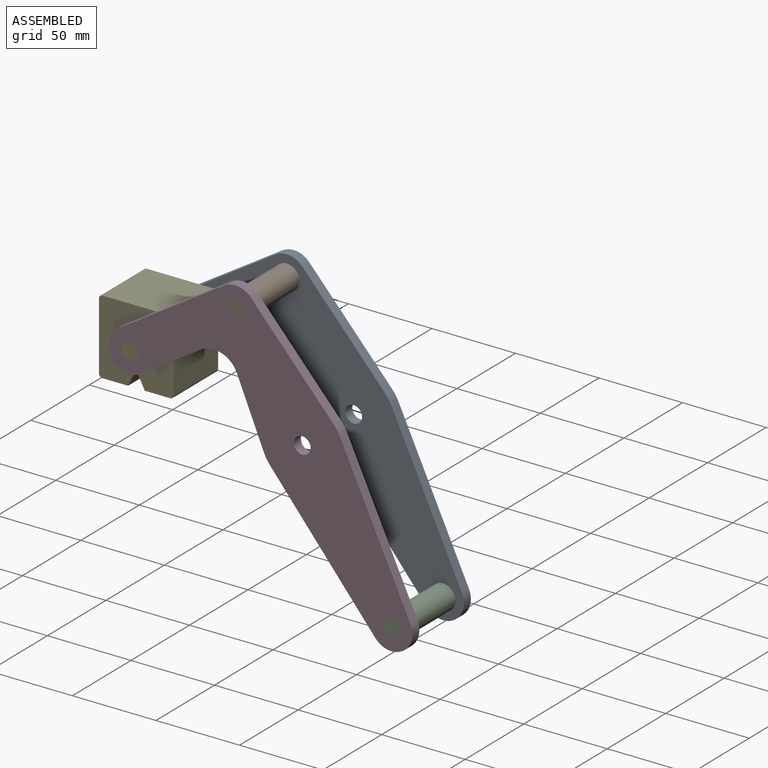
[diagram: assembled view]
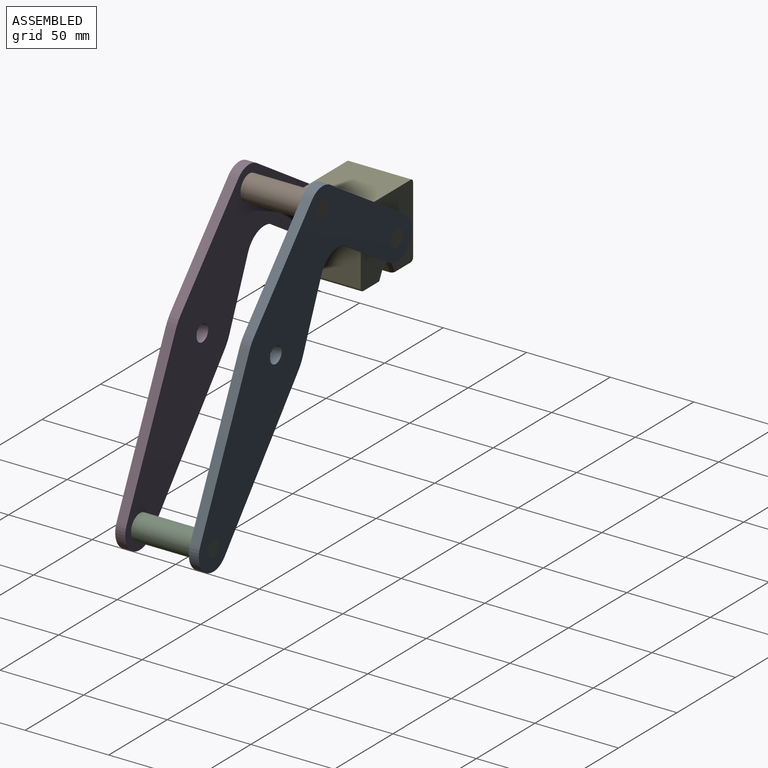
[diagram: assembled view, second angle]
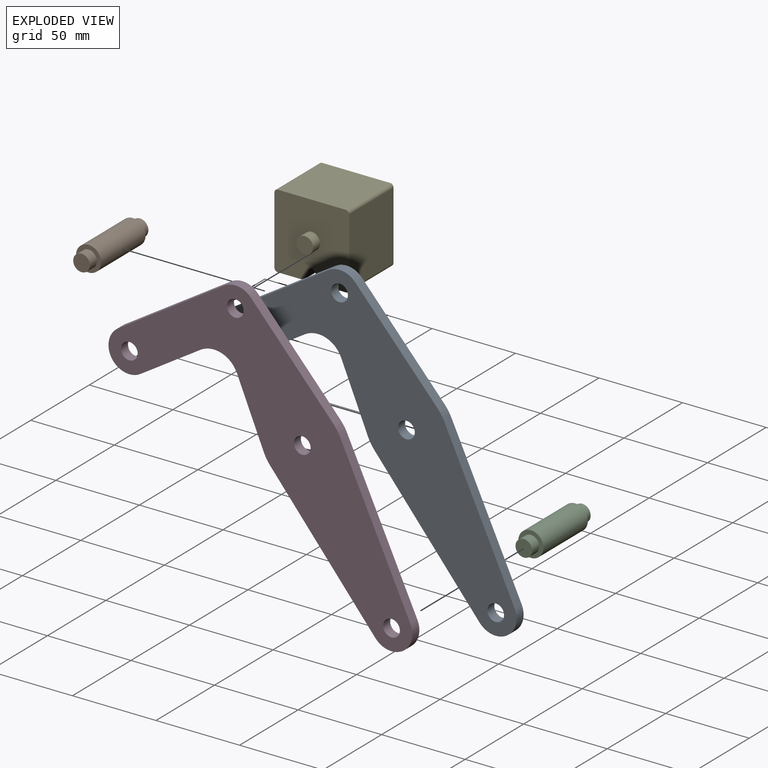
[diagram: exploded view]
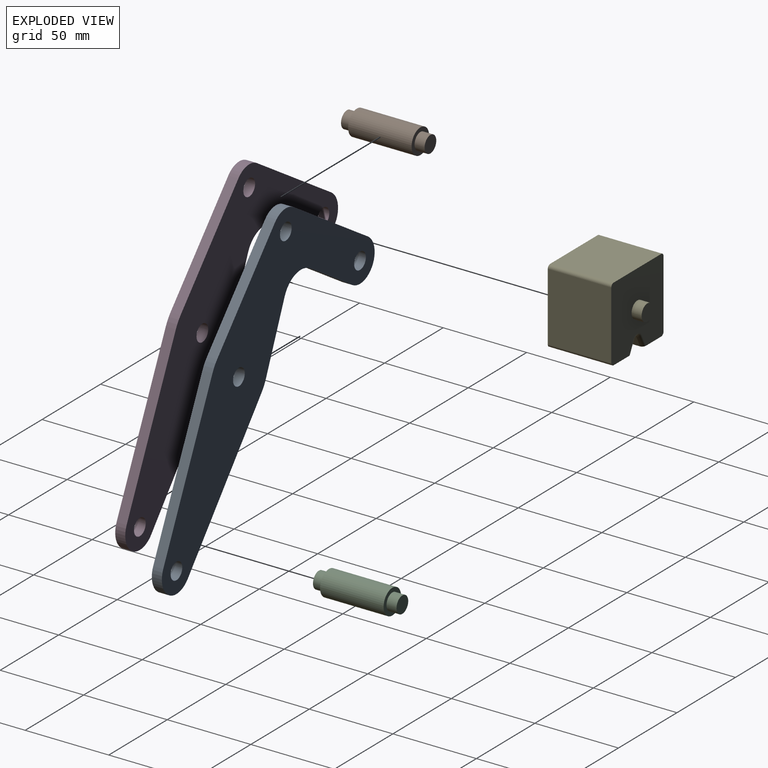
[diagram: exploded view, second angle]
ASSEMBLY  parts=5 mates=3
PART A: 18 faces, bbox 181.9x6x172.9 mm
  f0: cylinder r=12.5mm len=23.07mm, axis (0,1,0), area 235.6mm2, adj f1,f13,f16,f17
  f1: plane 35.9x22.68mm, normal (0.53,0,-0.85), area 254.8mm2, adj f0,f2,f16,f17
  f2: cylinder r=15mm len=21.85mm, axis (0,1,0), area 156.4mm2, adj f1,f3,f16,f17
  f3: plane 38.21x15.98mm, normal (-0.92,0,-0.39), area 248.5mm2, adj f2,f4,f16,f17
  f4: cylinder r=25mm len=6.25mm, axis (0,1,0), area 43.9mm2, adj f3,f5,f16,f17
  f5: plane 76.59x63.07mm, normal (-0.77,0,-0.64), area 595.3mm2, adj f4,f6,f16,f17
  f6: cylinder r=12.5mm len=22.15mm, axis (0,1,0), area 216.8mm2, adj f5,f7,f16,f17
  f7: plane 89.84x42.1mm, normal (0.91,0,0.42), area 595.3mm2, adj f6,f8,f16,f17
  f8: cylinder r=25mm len=6.08mm, axis (0,1,0), area 43.9mm2, adj f7,f9,f16,f17
  f9: plane 55.06x49.37mm, normal (0.74,0,0.67), area 443.7mm2, adj f8,f10,f16,f17
  f10: cylinder r=12.5mm len=15.98mm, axis (0,1,0), area 105.3mm2, adj f9,f13,f16,f17
  f11: cylinder r=5mm len=10mm, axis (0,1,0), area 188.5mm2, adj f16,f17
  f12: cylinder r=5mm len=10mm, axis (0,1,0), area 188.5mm2, adj f16,f17
  f13: plane 63.4x40.06mm, normal (-0.53,0,0.85), area 450mm2, adj f0,f10,f16,f17
  f14: cylinder r=5mm len=10mm, axis (0,1,0), area 188.5mm2, adj f16,f17
  f15: cylinder r=5mm len=10mm, axis (0,1,0), area 188.5mm2, adj f16,f17
  f16: plane 181.88x172.94mm, normal (0,-1,0), area 8704.3mm2, adj f0,f1,f2,f3,f4,f5,f6,f7
  f17: plane 181.88x172.94mm, normal (0,1,0), area 8704.3mm2, adj f0,f1,f2,f3,f4,f5,f6,f7
PART B: 7 faces, bbox 15x50x15 mm
  f0: cylinder r=7.5mm len=38mm, axis (0,-1,0), area 1790.7mm2, adj f2,f5
  f1: cylinder r=5mm len=10mm, axis (0,1,0), area 188.5mm2, adj f2,f3
  f2: plane 15x15mm, normal (0,-1,0), area 98.2mm2, adj f0,f1
  f3: plane 10x10mm, normal (0,-1,0), area 78.5mm2, adj f1
  f4: cylinder r=5mm len=10mm, axis (0,-1,0), area 188.5mm2, adj f5,f6
  f5: plane 15x15mm, normal (0,1,0), area 98.2mm2, adj f0,f4
  f6: plane 10x10mm, normal (0,1,0), area 78.5mm2, adj f4
PART C: same geometry as B
PART D: same geometry as A
PART E: 21 faces, bbox 44.7x50x45.6 mm
  f0: plane 40.68x38mm, normal (1,0,0), area 1545.8mm2, adj f7,f10,f17,f20
  f1: plane 40.68x38mm, normal (0,0,1), area 1545.8mm2, adj f7,f10,f17,f18
  f2: plane 40.68x38mm, normal (-1,0,0), area 1545.8mm2, adj f7,f10,f18,f19
  f3: plane 38x15.34mm, normal (0,0,-1), area 582mm2, adj f4,f7,f10,f16,f19
  f4: plane 36x6.42mm, normal (0.89,0,-0.45), area 258.5mm2, adj f3,f7,f13,f16
  f5: plane 36x6.42mm, normal (-0.89,0,-0.45), area 258.5mm2, adj f6,f7,f13,f14
  f6: plane 38x15.34mm, normal (0,0,-1), area 582mm2, adj f5,f7,f10,f14,f20
  f7: plane 44.68x44.68mm, normal (0,-1,0), area 1867.9mm2, adj f0,f1,f2,f3,f4,f5,f6,f9
  f8: plane 10x10mm, normal (0,-1,0), area 78.5mm2, adj f9
  f9: cylinder r=5mm len=10mm, axis (0,1,0), area 188.5mm2, adj f7,f8
  f10: plane 44.68x44.68mm, normal (0,1,0), area 1823.9mm2, adj f0,f1,f2,f3,f6,f12,f14,f15
  f11: plane 10x10mm, normal (0,1,0), area 78.5mm2, adj f12
  f12: cylinder r=5mm len=10mm, axis (0,-1,0), area 188.5mm2, adj f10,f11
  f13: cylinder r=2mm len=36mm, axis (0,-1,0), area 159.4mm2, adj f4,f5,f7,f15
  f14: cylinder r=2mm len=8.21mm, axis (0.45,0,-0.89), area 23.7mm2, adj f5,f6,f10,f15
  f15: torus R=4mm, axis (0,1,0), area 19mm2, adj f10,f13,f14,f16
  f16: cylinder r=2mm len=8.21mm, axis (0.45,0,0.89), area 23.7mm2, adj f3,f4,f10,f15
  f17: cylinder r=2mm len=38mm, axis (0,1,0), area 119.4mm2, adj f0,f1,f7,f10
  f18: cylinder r=2mm len=38mm, axis (0,-1,0), area 119.4mm2, adj f1,f2,f7,f10
  f19: cylinder r=2mm len=38mm, axis (0,1,0), area 119.4mm2, adj f2,f3,f7,f10
  f20: cylinder r=2mm len=38mm, axis (0,-1,0), area 119.4mm2, adj f0,f6,f7,f10
PLACE A t=(0,25,0)mm
PLACE B t=(0,-19,0)mm
PLACE C t=(93.48,-19,-147.94)mm
PLACE D t=(0,-19,0)mm fixed
PLACE E t=(0,-19,0)mm
MATE revolute E.f9 <-> D.f0  axis (0,-1,0) through (-103.47,-19,23.34)mm
MATE fastened C.f0 <-> D.f6  axis (0,-1,0) through (53.42,-19,-84.54)mm
MATE fastened A.f10 <-> B.f0  axis (0,-1,0) through (-40.06,19,63.4)mm
